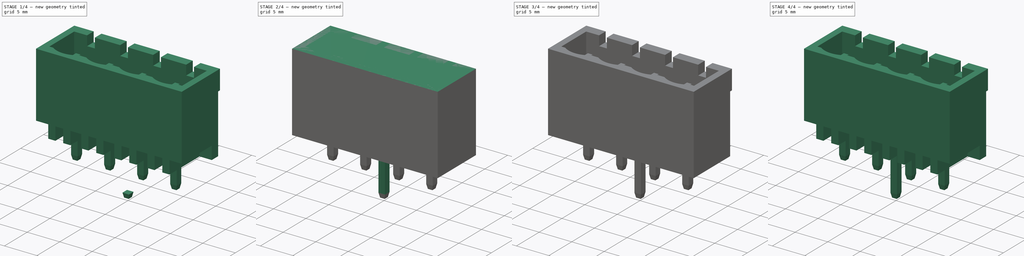
[diagram: build sequence overview — one tinted view per stage of 4, left to right]
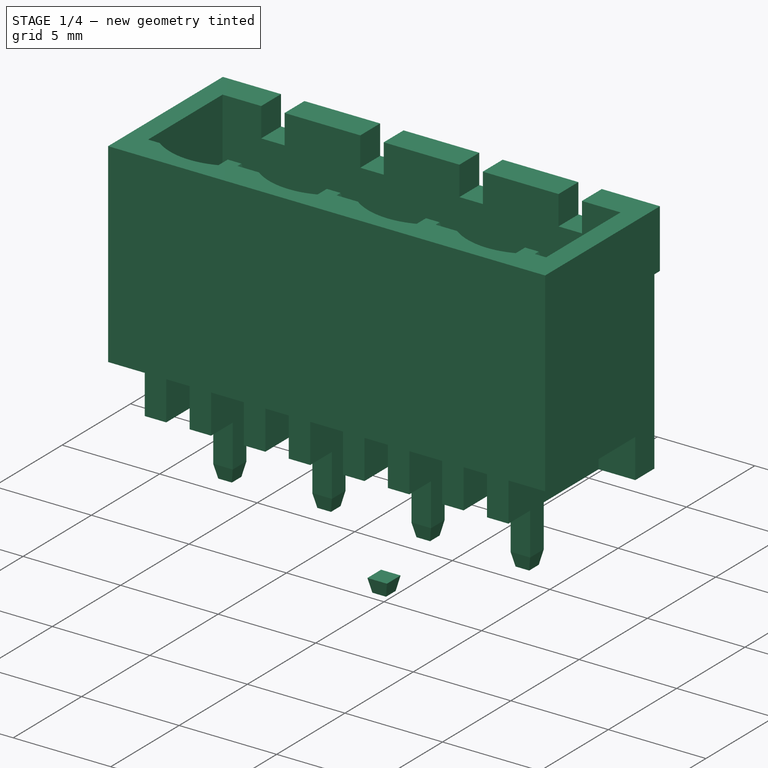
[diagram: stage 1 of 4 — iso view after this stage's code; geometry added in this stage tinted green]
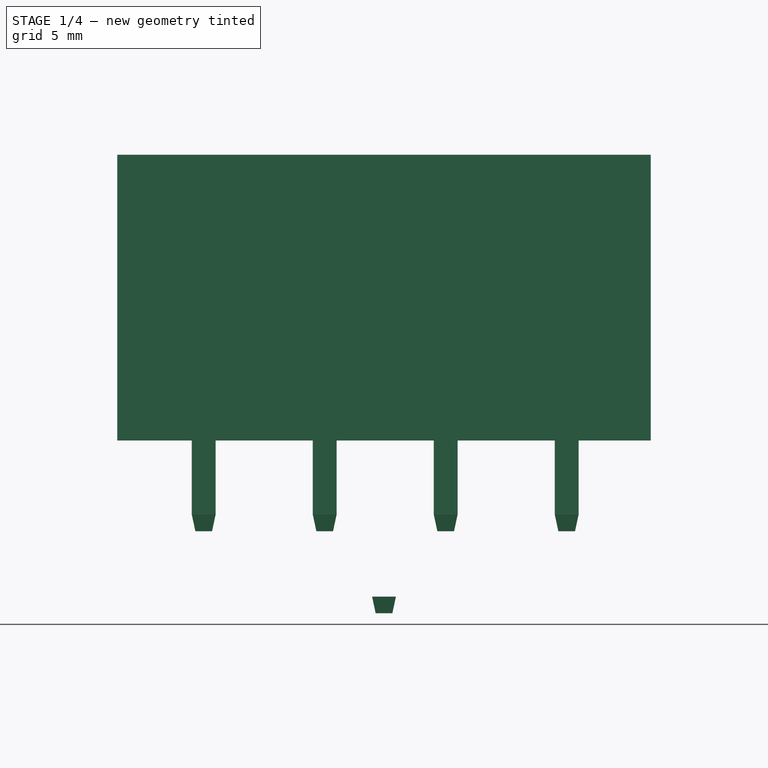
[diagram: stage 1 of 4 — front view after this stage's code; geometry added in this stage tinted green]
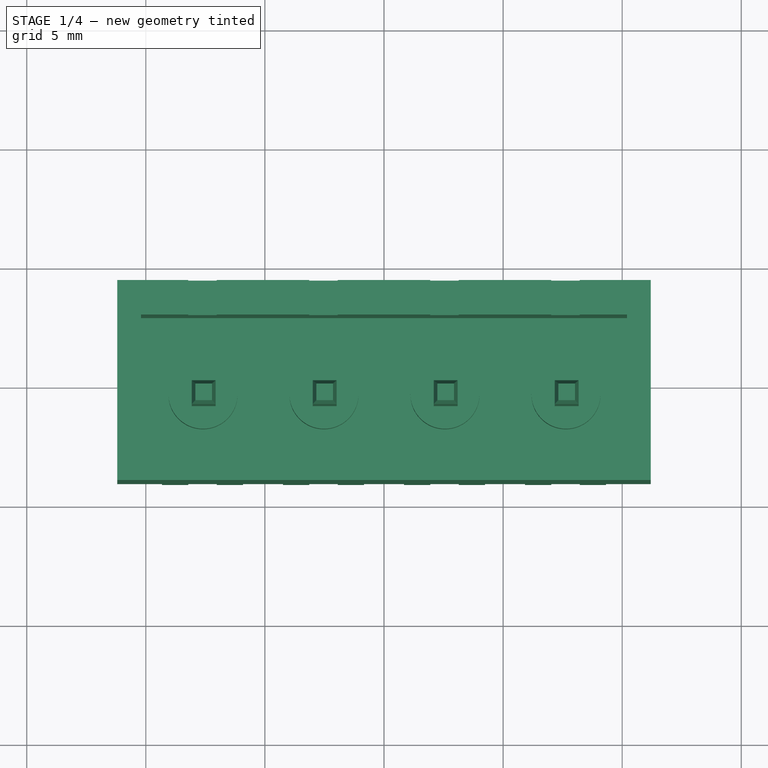
[diagram: stage 1 of 4 — top view after this stage's code; geometry added in this stage tinted green]
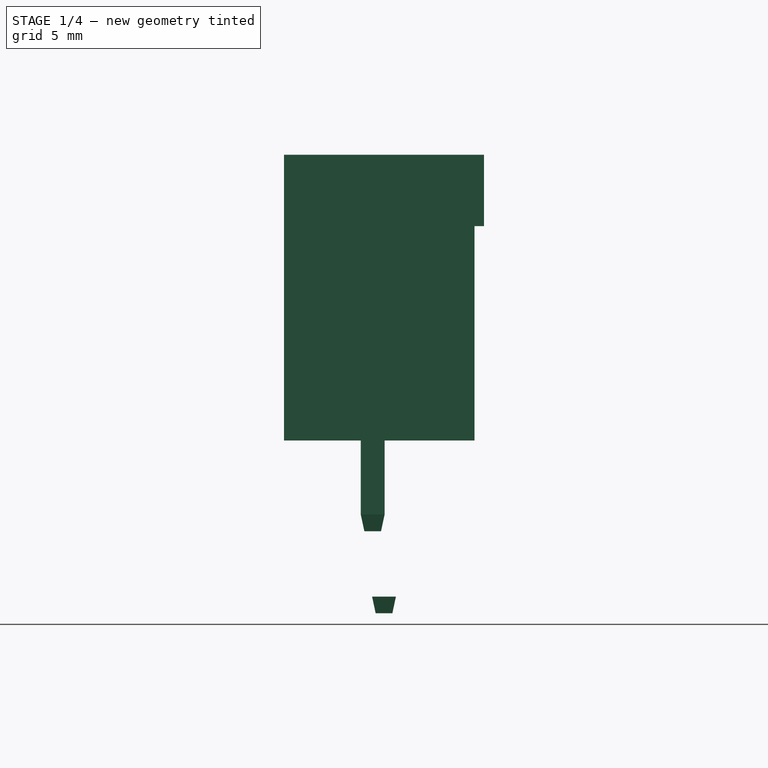
[diagram: stage 1 of 4 — right view after this stage's code; geometry added in this stage tinted green]
FCSTD DOCUMENT  (FreeCAD 0.14R3702 (Git))
Label: terminal-block-male-straight-4-ways
License: CC-BY 3.0
LicenseURL: http://creativecommons.org/licenses/by/3.0/
objects: Sketcher::SketchObject×9, Part::Feature×6, PartDesign::Pocket×4, PartDesign::Pad×3, App::DocumentObjectGroup×2, PartDesign::LinearPattern×1, PartDesign::Mirrored×1, Part::Loft×1, Part::Mirroring×1, Part::MultiFuse×1, Part::Compound×1
note: 35 computed .brp shape members not serialized (recipe doc carries the construction recipe); baked Part::Feature solids carry a one-line shape summary decoded from their .brp

FEATURE [Sketcher::SketchObject] Sketch010  label="pin-end-bottom-base-sketch"
  sketch-geometry (4):
    g0: LineSegment StartX=-0.5 StartY=0.5 StartZ=0 EndX=0.5 EndY=0.5 EndZ=0
    g1: LineSegment StartX=0.5 StartY=0.5 StartZ=0 EndX=0.5 EndY=-0.5 EndZ=0
    g2: LineSegment StartX=0.5 StartY=-0.5 StartZ=0 EndX=-0.5 EndY=-0.5 EndZ=0
    g3: LineSegment StartX=-0.5 StartY=-0.5 StartZ=0 EndX=-0.5 EndY=0.5 EndZ=0
  constraints (11):
    c: Coincident(g0,g1)
    c: Coincident(g1,g2)
    c: Coincident(g2,g3)
    c: Coincident(g3,g0)
    c: Horizontal(g0)
    c: Horizontal(g2)
    c: Vertical(g1)
    c: Vertical(g3)
    c: Symmetric(g0,g1,g-1)
    c: Equal(g0,g3)
    c: DistanceX(g0) = 1
FEATURE [Sketcher::SketchObject] Sketch011  label="pin-end-top-base-sketch"
  Placement = pos=(0,0,0.7) rot=(0,0,1;0rad)
  sketch-geometry (4):
    g0: LineSegment StartX=-0.35 StartY=0.35 StartZ=0 EndX=0.35 EndY=0.35 EndZ=0
    g1: LineSegment StartX=0.35 StartY=0.35 StartZ=0 EndX=0.35 EndY=-0.35 EndZ=0
    g2: LineSegment StartX=0.35 StartY=-0.35 StartZ=0 EndX=-0.35 EndY=-0.35 EndZ=0
    g3: LineSegment StartX=-0.35 StartY=-0.35 StartZ=0 EndX=-0.35 EndY=0.35 EndZ=0
  constraints (11):
    c: Coincident(g0,g1)
    c: Coincident(g1,g2)
    c: Coincident(g2,g3)
    c: Coincident(g3,g0)
    c: Horizontal(g0)
    c: Horizontal(g2)
    c: Vertical(g1)
    c: Vertical(g3)
    c: Symmetric(g0,g1,g-1)
    c: Equal(g0,g3)
    c: DistanceX(g0) = 0.7
FEATURE [Part::Loft] Loft  label="pin-end"
  Closed = false
  Placement = pos=(0,0,6.554) rot=(0,0,1;0rad)
  Ruled = false
  Sections = -> [Sketch010,Sketch011]
  Solid = true
FEATURE [Part::Mirroring] Part__Mirroring  label="pin-end (Mirror #1)"
  Base = (0,0,0)
  Normal = (0,0,1)
  Source = -> Loft
FEATURE [App::DocumentObjectGroup] Group002  label="pin-src"
  Group = -> [Loft,Pad003,Part__Mirroring,Fusion]
FEATURE [Part::Feature] Fusion001  label="pin001"
  Placement = pos=(-7.57,-0.475,3.446) rot=(0,0,1;0rad)
  shape: bbox 1 x 1 x 14.51 mm, 14 faces (baked)
FEATURE [Part::Feature] Fusion002  label="pin002"
  Placement = pos=(-2.49,-0.475,3.446) rot=(0,0,1;0rad)
  shape: bbox 1 x 1 x 14.51 mm, 14 faces (baked)
FEATURE [Part::Feature] Fusion003  label="pin003"
  Placement = pos=(2.59,-0.475,3.446) rot=(0,0,1;0rad)
  shape: bbox 1 x 1 x 14.51 mm, 14 faces (baked)
FEATURE [Part::Feature] Fusion004  label="pin004"
  Placement = pos=(7.67,-0.475,3.446) rot=(0,0,1;0rad)
  shape: bbox 1 x 1 x 14.51 mm, 14 faces (baked)
FEATURE [Part::Compound] Compound  label="terminal-block-male-straight-4-ways"
  Links = -> [Mirrored001,Fusion001,Fusion002,Fusion003,Fusion004]
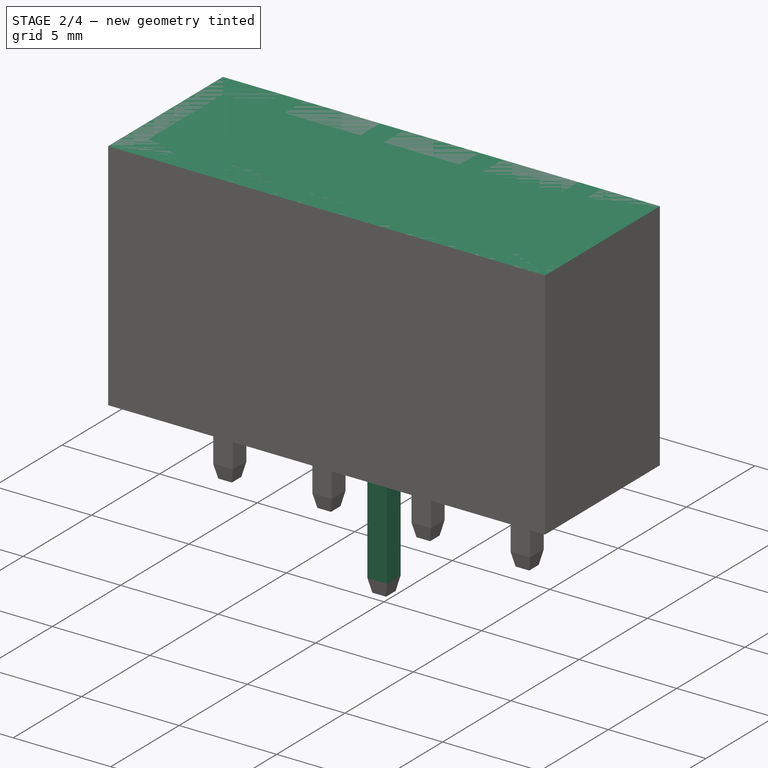
[diagram: stage 2 of 4 — iso view after this stage's code; geometry added in this stage tinted green]
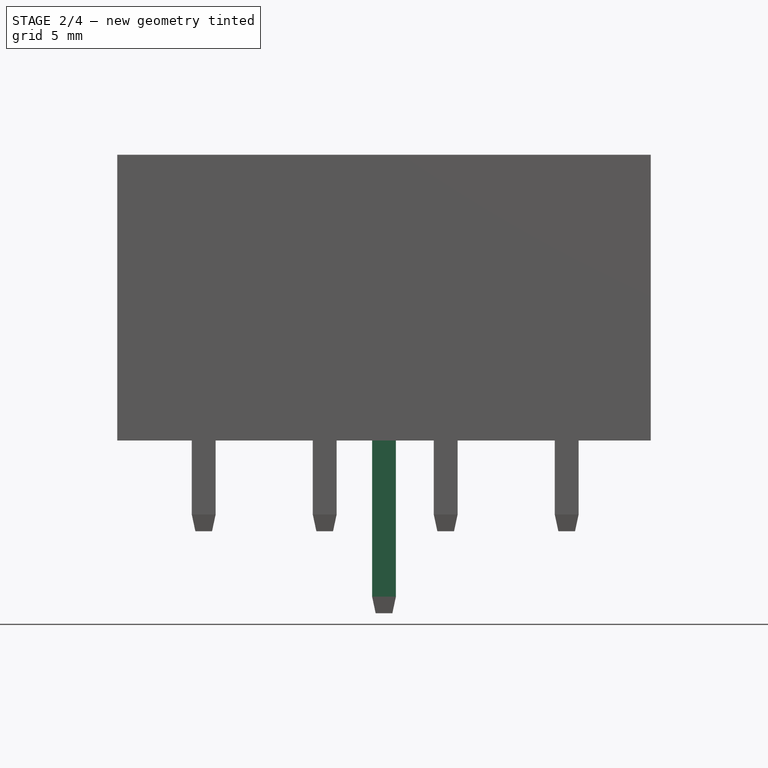
[diagram: stage 2 of 4 — front view after this stage's code; geometry added in this stage tinted green]
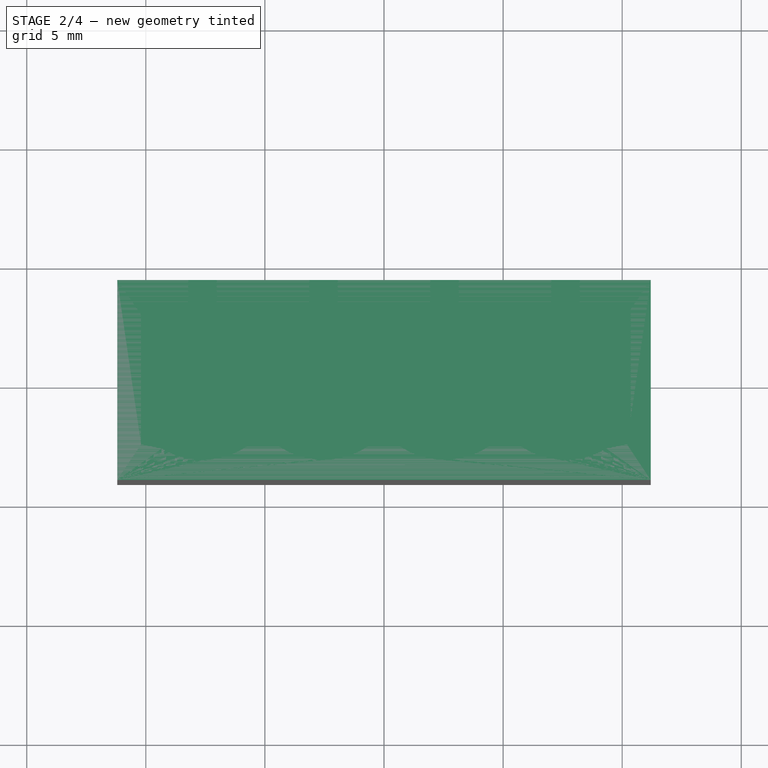
[diagram: stage 2 of 4 — top view after this stage's code; geometry added in this stage tinted green]
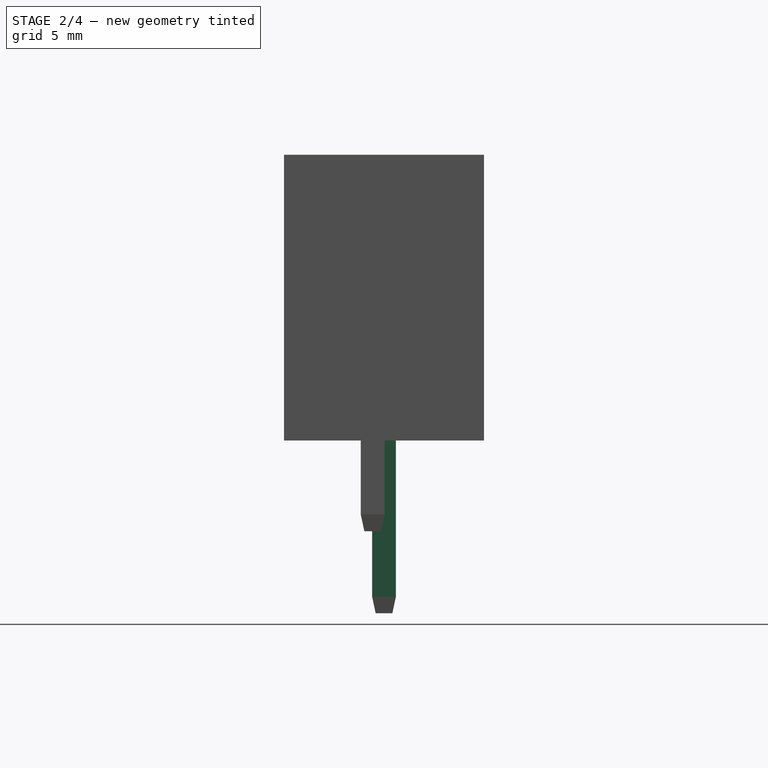
[diagram: stage 2 of 4 — right view after this stage's code; geometry added in this stage tinted green]
FEATURE [Part::Feature] Part__Feature  label="RAMPS1_136"
  Placement = pos=(0.05,-4.3,12) rot=(0,0,1;0rad)
  shape: bbox 22.32 x 12.5 x 12 mm, 181 faces (baked)
FEATURE [Sketcher::SketchObject] Sketch  label="main-body-sketch"
  sketch-geometry (4):
    g0: LineSegment StartX=-11.2 StartY=4.2 StartZ=0 EndX=11.2 EndY=4.2 EndZ=0
    g1: LineSegment StartX=11.2 StartY=4.2 StartZ=0 EndX=11.2 EndY=-4.2 EndZ=0
    g2: LineSegment StartX=11.2 StartY=-4.2 StartZ=0 EndX=-11.2 EndY=-4.2 EndZ=0
    g3: LineSegment StartX=-11.2 StartY=-4.2 StartZ=0 EndX=-11.2 EndY=4.2 EndZ=0
  constraints (11):
    c: Coincident(g0,g1)
    c: Coincident(g1,g2)
    c: Coincident(g2,g3)
    c: Coincident(g3,g0)
    c: Horizontal(g0)
    c: Horizontal(g2)
    c: Vertical(g1)
    c: Vertical(g3)
    c: Symmetric(g0,g1,g-1)
    c: DistanceX(g0) = 22.4
    c: DistanceY(g1) = -8.4
FEATURE [PartDesign::Pad] Pad  label="main-body"
  Length = 12
  Length2 = 100
  Sketch = -> Sketch
  Type = 0
FEATURE [App::DocumentObjectGroup] Group  label="body-src"
  Group = -> [Pad,Pocket,Pocket001,Pocket002,Pad001,LinearPattern,Pocket003,Mirrored]
FEATURE [Part::Feature] Mirrored001  label="terminal-body"
  shape: bbox 22.4 x 8.4 x 12 mm, 78 faces (baked)
FEATURE [Sketcher::SketchObject] Sketch009  label="pin-base-sketch"
  sketch-geometry (4):
    g0: LineSegment StartX=-0.5 StartY=0.5 StartZ=0 EndX=0.5 EndY=0.5 EndZ=0
    g1: LineSegment StartX=0.5 StartY=0.5 StartZ=0 EndX=0.5 EndY=-0.5 EndZ=0
    g2: LineSegment StartX=0.5 StartY=-0.5 StartZ=0 EndX=-0.5 EndY=-0.5 EndZ=0
    g3: LineSegment StartX=-0.5 StartY=-0.5 StartZ=0 EndX=-0.5 EndY=0.5 EndZ=0
  constraints (11):
    c: Coincident(g0,g1)
    c: Coincident(g1,g2)
    c: Coincident(g2,g3)
    c: Coincident(g3,g0)
    c: Horizontal(g0)
    c: Horizontal(g2)
    c: Vertical(g1)
    c: Vertical(g3)
    c: Symmetric(g0,g1,g-1)
    c: Equal(g0,g3)
    c: DistanceX(g0) = 1
FEATURE [PartDesign::Pad] Pad003  label="pin-base"
  Length = 13.108
  Length2 = 100
  Midplane = true
  Sketch = -> Sketch009
  Type = 0
FEATURE [Part::MultiFuse] Fusion  label="pin"
  Shapes = -> [Pad003,Loft,Part__Mirroring]
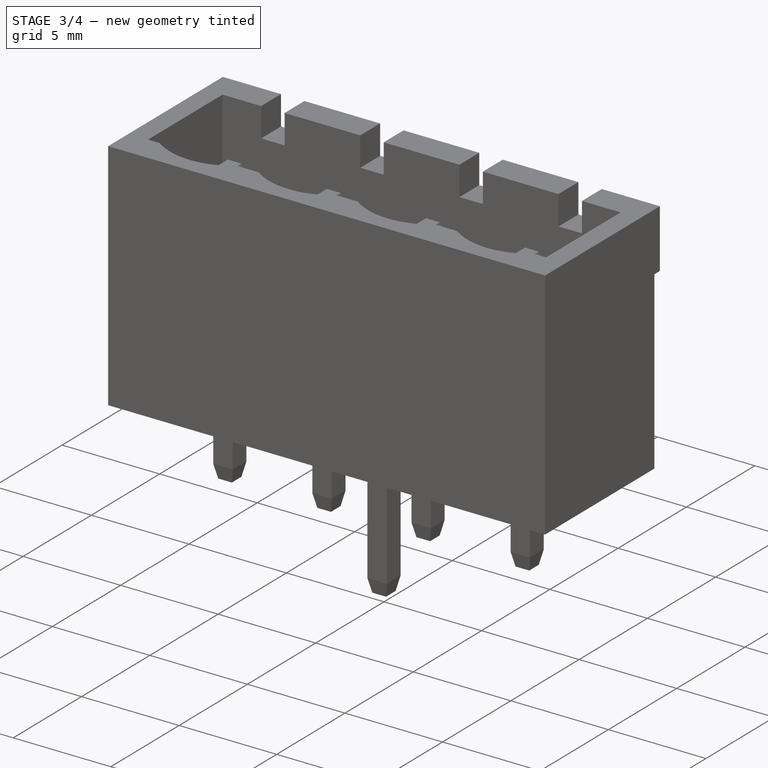
[diagram: stage 3 of 4 — iso view after this stage's code; geometry added in this stage tinted green]
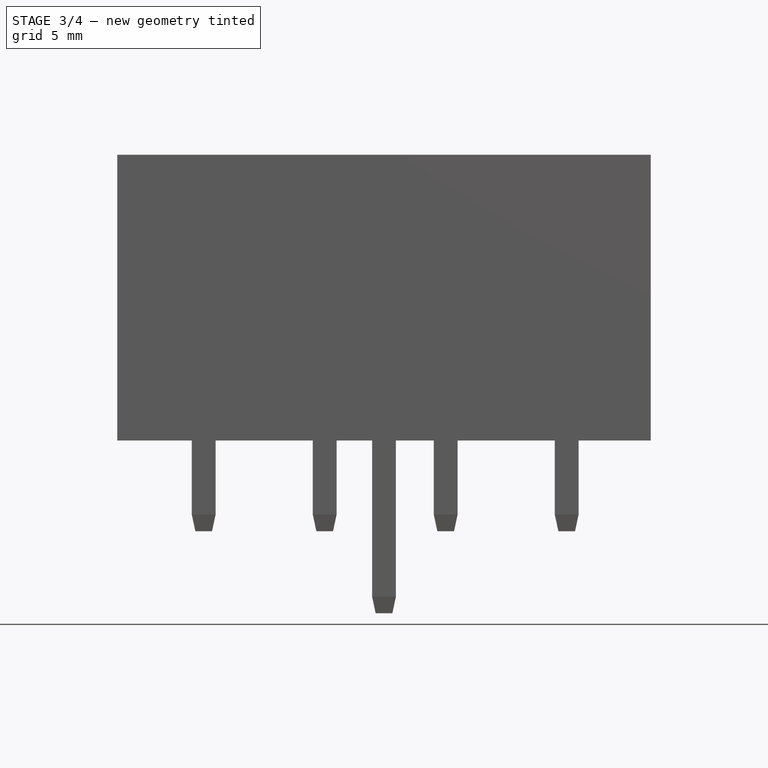
[diagram: stage 3 of 4 — front view after this stage's code; geometry added in this stage tinted green]
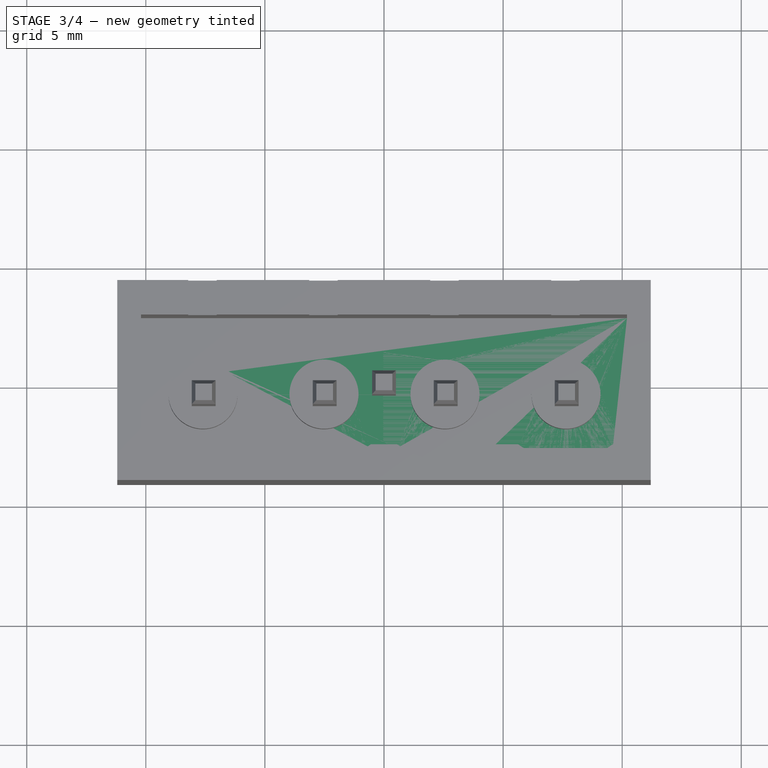
[diagram: stage 3 of 4 — top view after this stage's code; geometry added in this stage tinted green]
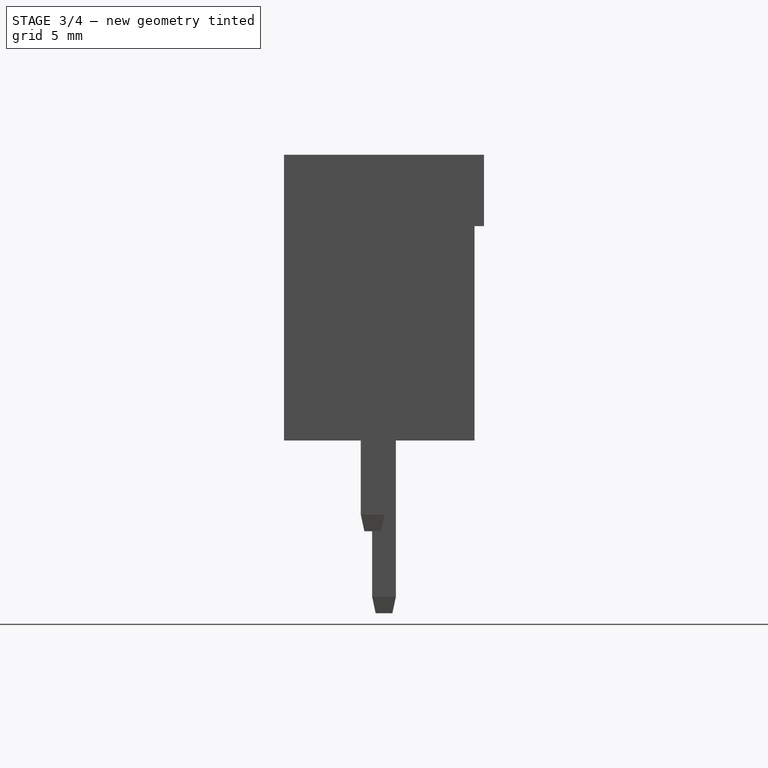
[diagram: stage 3 of 4 — right view after this stage's code; geometry added in this stage tinted green]
FEATURE [Sketcher::SketchObject] Sketch001  label="cutout-1-sketch"
  ExternalGeometry = -> [Pad]
  Placement = pos=(0,0,12) rot=(0,0,1;0rad)
  Support = -> Pad [Face6]
  sketch-geometry (19):
    g0: LineSegment StartX=-10.2 StartY=2.75 StartZ=0 EndX=10.2 EndY=2.75 EndZ=0
    g1: LineSegment StartX=10.2 StartY=2.75 StartZ=0 EndX=10.2 EndY=-2.7 EndZ=0
    g2: LineSegment StartX=-10.2 StartY=-2.7 StartZ=0 EndX=-10.2 EndY=2.75 EndZ=0
    g3: LineSegment [constr] StartX=-2.54 StartY=0 StartZ=0 EndX=2.54 EndY=0 EndZ=0
    g4: Circle [constr] CenterX=-2.54 CenterY=0 CenterZ=0 NormalX=0 NormalY=0 NormalZ=1 Radius=0.5
    g5: Circle [constr] CenterX=2.54 CenterY=0 CenterZ=0 NormalX=0 NormalY=0 NormalZ=1 Radius=0.5
    g6: LineSegment [constr] StartX=-7.62 StartY=0 StartZ=0 EndX=-2.54 EndY=0 EndZ=0
    g7: LineSegment [constr] StartX=2.54 StartY=0 StartZ=0 EndX=7.62 EndY=0 EndZ=0
    g8: Circle [constr] CenterX=-7.62 CenterY=0 CenterZ=0 NormalX=0 NormalY=0 NormalZ=1 Radius=0.5
    g9: Circle [constr] CenterX=7.62 CenterY=0 CenterZ=0 NormalX=0 NormalY=0 NormalZ=1 Radius=0.5
    g10: ArcOfCircle CenterX=-7.62 CenterY=0 CenterZ=0 NormalX=0 NormalY=0 NormalZ=1 Radius=3.35 StartAngle=4.07891 EndAngle=5.34587
    g11: LineSegment StartX=-10.2 StartY=-2.7 StartZ=0 EndX=-9.60305 EndY=-2.7 EndZ=0
    g12: LineSegment StartX=-5.63695 StartY=-2.7 StartZ=0 EndX=-4.52305 EndY=-2.7 EndZ=0
    g13: LineSegment StartX=-0.556947 StartY=-2.7 StartZ=0 EndX=0.556947 EndY=-2.7 EndZ=0
    g14: ArcOfCircle CenterX=-2.54 CenterY=0 CenterZ=0 NormalX=0 NormalY=0 NormalZ=1 Radius=3.35 StartAngle=4.07891 EndAngle=5.34587
    g15: ArcOfCircle CenterX=2.54 CenterY=0 CenterZ=0 NormalX=0 NormalY=0 NormalZ=1 Radius=3.35 StartAngle=4.07891 EndAngle=5.34587
    g16: LineSegment StartX=4.52305 StartY=-2.7 StartZ=0 EndX=5.63695 EndY=-2.7 EndZ=0
    g17: ArcOfCircle CenterX=7.62 CenterY=0 CenterZ=0 NormalX=0 NormalY=0 NormalZ=1 Radius=3.35 StartAngle=4.07891 EndAngle=5.34587
    g18: LineSegment StartX=9.60305 StartY=-2.7 StartZ=0 EndX=10.2 EndY=-2.7 EndZ=0
  constraints (53):
    c: Coincident(g0,g1)
    c: Coincident(g2,g0)
    c: Horizontal(g0)
    c: Vertical(g1)
    c: Vertical(g2)
    c: Symmetric(g0,g0,g-2)
    c: Symmetric(g3,g3,g-2)
    c: PointOnObject(g3,g-1)
    c: Coincident(g4,g3)
    c: Coincident(g5,g3)
    c: DistanceX(g3) = 5.08
    c: Equal(g4,g5)
    c: Radius(g4) = 0.5
    c: Horizontal(g6)
    c: Coincident(g6,g3)
    c: Horizontal(g7)
    c: Coincident(g7,g3)
    c: Equal(g6,g7)
    c: Equal(g7,g3)
    c: Coincident(g8,g6)
    c: Coincident(g9,g7)
    c: Equal(g8,g9)
    c: Equal(g9,g4)
    c: DistanceX(g0,g-3) = -1
    c: DistanceY(g0,g-3) = 1.45
    c: DistanceY(g-3,g2) = 1.5
    c: Symmetric(g2,g1,g-2)
    c: Coincident(g10,g6)
    c: Radius(g10) = 3.35
    c: Horizontal(g11)
    c: Coincident(g11,g2)
    c: Coincident(g11,g10)
    c: Horizontal(g12)
    c: PointOnObject(g12,g11)
    c: Coincident(g10,g12)
    c: Symmetric(g13,g13,g-2)
    c: PointOnObject(g13,g11)
    c: Equal(g14,g10)
    c: Coincident(g14,g3)
    c: Coincident(g14,g12)
    c: Coincident(g14,g13)
    c: Coincident(g15,g3)
    c: Equal(g14,g15)
    c: Coincident(g15,g13)
    c: Symmetric(g15,g12,g-2)
    c: Horizontal(g16)
    c: Symmetric(g16,g12,g-2)
    c: Symmetric(g16,g10,g-2)
    c: Coincident(g17,g7)
    c: Coincident(g17,g16)
    c: Horizontal(g18)
    c: Coincident(g18,g1)
    c: Coincident(g18,g17)
FEATURE [PartDesign::Pocket] Pocket  label="cutout-1"
  Length = 8.8
  Sketch = -> Sketch001
  Type = 0
FEATURE [Sketcher::SketchObject] Sketch002  label="cutout-2-sketch"
  ExternalGeometry = -> [Pocket]
  Placement = pos=(11.2,0,0) rot=(0.57735,0.57735,0.57735;2.0944rad)
  Support = -> Pocket [Face3]
  sketch-geometry (6):
    g0: LineSegment StartX=4.2 StartY=9 StartZ=0 EndX=3.8 EndY=9 EndZ=0
    g1: LineSegment StartX=3.8 StartY=9 StartZ=0 EndX=3.8 EndY=0 EndZ=0
    g2: LineSegment StartX=4.2 StartY=9 StartZ=0 EndX=4.4 EndY=9 EndZ=0
    g3: LineSegment StartX=4.4 StartY=9 StartZ=0 EndX=4.4 EndY=-0.2 EndZ=0
    g4: LineSegment StartX=4.4 StartY=-0.2 StartZ=0 EndX=3.8 EndY=-0.2 EndZ=0
    g5: LineSegment StartX=3.8 StartY=0 StartZ=0 EndX=3.8 EndY=-0.2 EndZ=0
  constraints (18):
    c: Coincident(g0,g1)
    c: Horizontal(g0)
    c: Vertical(g1)
    c: PointOnObject(g0,g-3)
    c: DistanceX(g0) = -0.4
    c: DistanceY(g0,g-3) = 3
    c: Coincident(g2,g3)
    c: Coincident(g3,g4)
    c: Horizontal(g2)
    c: Horizontal(g4)
    c: Vertical(g3)
    c: PointOnObject(g1,g-1)
    c: Coincident(g2,g0)
    c: DistanceX(g2) = 0.2
    c: Vertical(g5)
    c: Coincident(g5,g1)
    c: Coincident(g5,g4)
    c: DistanceY(g-3,g3) = -0.2
FEATURE [PartDesign::Pocket] Pocket001  label="cutout-2"
  Length = 5
  Sketch = -> Sketch002
  Type = 1
FEATURE [Sketcher::SketchObject] Sketch003  label="cutout-3-sketch"
  ExternalGeometry = -> [Pocket001]
  Placement = pos=(0,4.2,0) rot=(0,0.707107,0.707107;3.14159rad)
  Support = -> Pocket001 [Face1]
  sketch-geometry (18):
    g0: LineSegment StartX=-1.94 StartY=12 StartZ=0 EndX=-1.94 EndY=10.5 EndZ=0
    g1: LineSegment StartX=-1.94 StartY=10.5 StartZ=0 EndX=-3.14 EndY=10.5 EndZ=0
    g2: LineSegment StartX=-3.14 StartY=10.5 StartZ=0 EndX=-3.14 EndY=12 EndZ=0
    g3: LineSegment StartX=-3.14 StartY=12 StartZ=0 EndX=-1.94 EndY=12 EndZ=0
    g4: LineSegment [constr] StartX=-2.54 StartY=12 StartZ=0 EndX=-2.54 EndY=10.5 EndZ=0
    g5: LineSegment StartX=1.94 StartY=12 StartZ=0 EndX=3.14 EndY=12 EndZ=0
    g6: LineSegment StartX=3.14 StartY=12 StartZ=0 EndX=3.14 EndY=10.5 EndZ=0
    g7: LineSegment StartX=3.14 StartY=10.5 StartZ=0 EndX=1.94 EndY=10.5 EndZ=0
    g8: LineSegment StartX=1.94 StartY=10.5 StartZ=0 EndX=1.94 EndY=12 EndZ=0
    g9: LineSegment [constr] StartX=2.54 StartY=12 StartZ=0 EndX=2.54 EndY=10.5 EndZ=0
    g10: LineSegment StartX=-8.22 StartY=12 StartZ=0 EndX=-7.02 EndY=12 EndZ=0
    g11: LineSegment StartX=-7.02 StartY=12 StartZ=0 EndX=-7.02 EndY=10.5 EndZ=0
    g12: LineSegment StartX=-7.02 StartY=10.5 StartZ=0 EndX=-8.22 EndY=10.5 EndZ=0
    g13: LineSegment StartX=-8.22 StartY=10.5 StartZ=0 EndX=-8.22 EndY=12 EndZ=0
    g14: LineSegment StartX=7.02 StartY=12 StartZ=0 EndX=8.22 EndY=12 EndZ=0
    g15: LineSegment StartX=8.22 StartY=12 StartZ=0 EndX=8.22 EndY=10.5 EndZ=0
    g16: LineSegment StartX=8.22 StartY=10.5 StartZ=0 EndX=7.02 EndY=10.5 EndZ=0
    g17: LineSegment StartX=7.02 StartY=10.5 StartZ=0 EndX=7.02 EndY=12 EndZ=0
  constraints (52):
    c: Coincident(g0,g1)
    c: Coincident(g1,g2)
    c: Horizontal(g1)
    c: Vertical(g0)
    c: Vertical(g2)
    c: PointOnObject(g2,g-3)
    c: Coincident(g3,g2)
    c: Coincident(g3,g0)
    c: Vertical(g4)
    c: PointOnObject(g4,g1)
    c: PointOnObject(g4,g-3)
    c: Symmetric(g2,g0,g4)
    c: Coincident(g5,g6)
    c: Coincident(g6,g7)
    c: Coincident(g7,g8)
    c: Coincident(g8,g5)
    c: Horizontal(g5)
    c: Horizontal(g7)
    c: Vertical(g6)
    c: Vertical(g8)
    c: Symmetric(g5,g0,g-2)
    c: Symmetric(g5,g2,g-2)
    c: Vertical(g9)
    c: Symmetric(g9,g4,g-2)
    c: PointOnObject(g9,g7)
    c: Symmetric(g7,g0,g-2)
    c: DistanceX(g4,g9) = 5.08
    c: DistanceX(g1) = -1.2
    c: DistanceY(g0) = -1.5
    c: Coincident(g10,g11)
    c: Coincident(g11,g12)
    c: Coincident(g12,g13)
    c: Coincident(g13,g10)
    c: Horizontal(g10)
    c: Horizontal(g12)
    c: Vertical(g11)
    c: Vertical(g13)
    c: Coincident(g14,g15)
    c: Coincident(g15,g16)
    c: Coincident(g16,g17)
    c: Coincident(g17,g14)
    c: Horizontal(g14)
    c: Horizontal(g16)
    c: Vertical(g15)
    c: Vertical(g17)
    c: PointOnObject(g10,g-3)
    c: DistanceX(g2,g10) = -5.08
    c: Equal(g12,g1)
    c: Equal(g11,g2)
    c: Symmetric(g14,g10,g-2)
    c: Symmetric(g14,g10,g-2)
    c: Symmetric(g16,g11,g-2)
FEATURE [PartDesign::Pocket] Pocket002  label="cutout-3"
  Length = 2
  Sketch = -> Sketch003
  Type = 0
FEATURE [Sketcher::SketchObject] Sketch004  label="pin-base-master-sketch"
  Placement = pos=(0,0,3.2) rot=(0,0,1;0rad)
  Support = -> Pocket002 [Face36]
  sketch-geometry (1):
    g0: Circle CenterX=-7.6 CenterY=-0.47 CenterZ=0 NormalX=0 NormalY=0 NormalZ=1 Radius=1.45
  constraints (3):
    c: DistanceX(g-1,g0) = -7.6
    c: DistanceY(g-1,g0) = -0.47
    c: Radius(g0) = 1.45
FEATURE [PartDesign::Pad] Pad001  label="pint-base-master"
  Length = 1.7
  Length2 = 100
  Sketch = -> Sketch004
  Type = 0
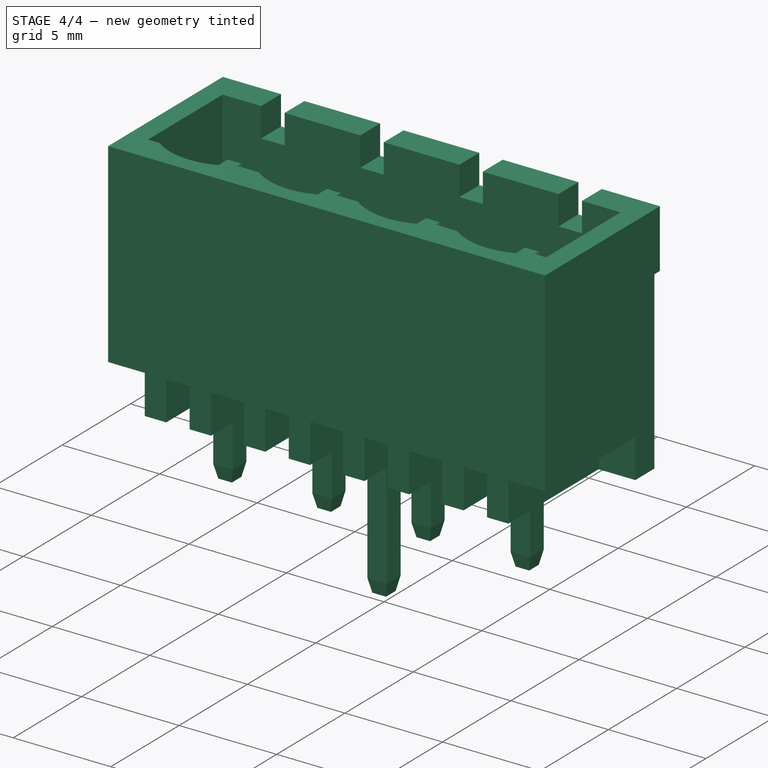
[diagram: stage 4 of 4 — iso view after this stage's code; geometry added in this stage tinted green]
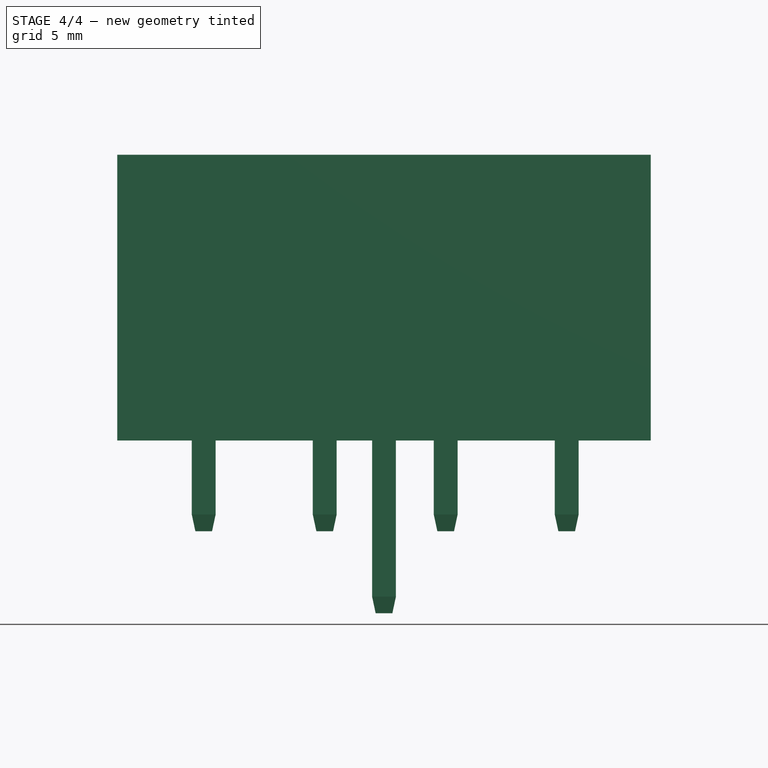
[diagram: stage 4 of 4 — front view after this stage's code; geometry added in this stage tinted green]
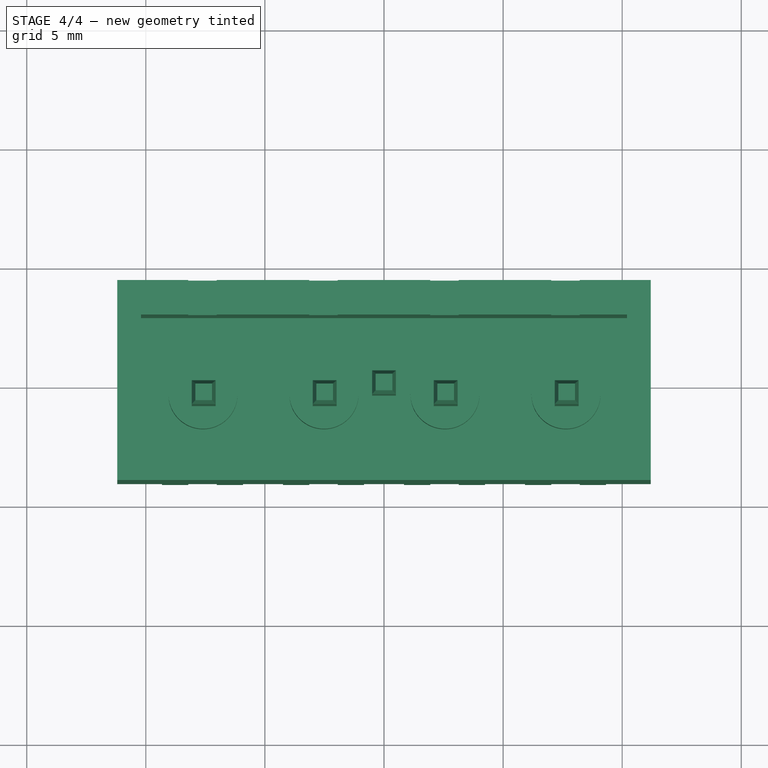
[diagram: stage 4 of 4 — top view after this stage's code; geometry added in this stage tinted green]
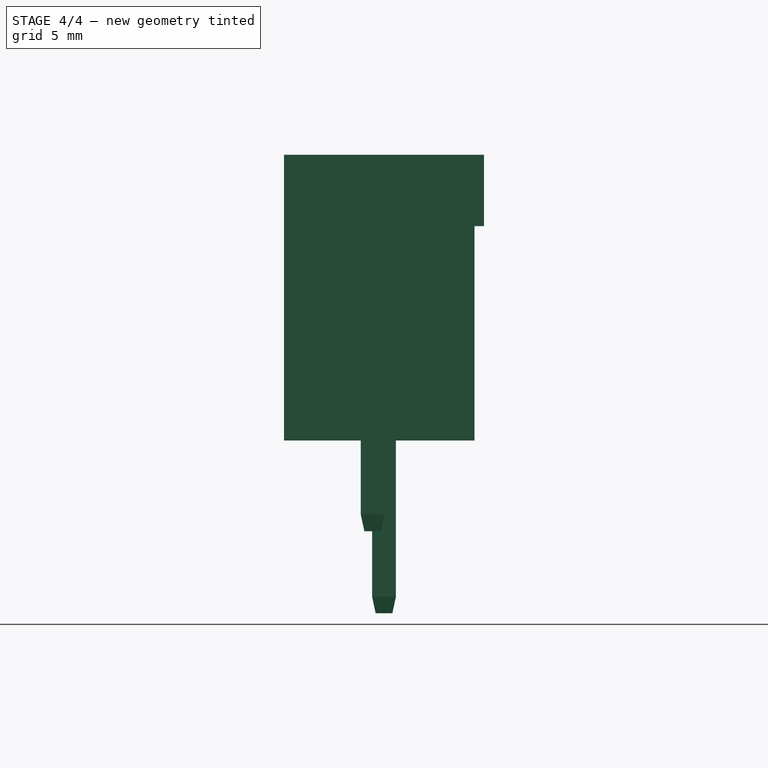
[diagram: stage 4 of 4 — right view after this stage's code; geometry added in this stage tinted green]
FEATURE [PartDesign::LinearPattern] LinearPattern  label="pin-bases"
  Direction = -> Sketch004 [H_Axis]
  Length = 15.24
  Occurrences = 4
  Originals = -> [Pad001]
FEATURE [Sketcher::SketchObject] Sketch005  label="cutout-4-sketch"
  Placement = pos=(0,-4.2,0) rot=(1,0,0;1.5708rad)
  Support = -> LinearPattern [Face23]
  sketch-geometry (22):
    g0: LineSegment StartX=-3.14 StartY=0 StartZ=0 EndX=-1.94 EndY=0 EndZ=0
    g1: LineSegment StartX=-1.94 StartY=0 StartZ=0 EndX=-1.94 EndY=2 EndZ=0
    g2: LineSegment StartX=-1.94 StartY=2 StartZ=0 EndX=-3.14 EndY=2 EndZ=0
    g3: LineSegment StartX=-3.14 StartY=2 StartZ=0 EndX=-3.14 EndY=0 EndZ=0
    g4: LineSegment [constr] StartX=-2.54 StartY=0 StartZ=0 EndX=-2.54 EndY=2 EndZ=0
    g5: LineSegment StartX=-8.22 StartY=2 StartZ=0 EndX=-7.02 EndY=2 EndZ=0
    g6: LineSegment StartX=-7.02 StartY=2 StartZ=0 EndX=-7.02 EndY=0 EndZ=0
    g7: LineSegment StartX=-7.02 StartY=0 StartZ=0 EndX=-8.22 EndY=0 EndZ=0
    g8: LineSegment StartX=-8.22 StartY=0 StartZ=0 EndX=-8.22 EndY=2 EndZ=0
    g9: LineSegment StartX=-5.92 StartY=0 StartZ=0 EndX=-4.24 EndY=0 EndZ=0
    g10: LineSegment StartX=-4.24 StartY=0 StartZ=0 EndX=-4.24 EndY=2 EndZ=0
    g11: LineSegment StartX=-4.24 StartY=2 StartZ=0 EndX=-5.92 EndY=2 EndZ=0
    g12: LineSegment StartX=-5.92 StartY=2 StartZ=0 EndX=-5.92 EndY=0 EndZ=0
    g13: LineSegment [constr] StartX=-5.08 StartY=2 StartZ=0 EndX=-5.08 EndY=0 EndZ=0
    g14: LineSegment StartX=-0.84 StartY=0 StartZ=0 EndX=0 EndY=0 EndZ=0
    g15: LineSegment StartX=0 StartY=0 StartZ=0 EndX=0 EndY=2 EndZ=0
    g16: LineSegment StartX=0 StartY=2 StartZ=0 EndX=-0.84 EndY=2 EndZ=0
    g17: LineSegment StartX=-0.84 StartY=2 StartZ=0 EndX=-0.84 EndY=0 EndZ=0
    g18: LineSegment StartX=-11.82 StartY=2 StartZ=0 EndX=-9.32 EndY=2 EndZ=0
    g19: LineSegment StartX=-9.32 StartY=2 StartZ=0 EndX=-9.32 EndY=0 EndZ=0
    g20: LineSegment StartX=-9.32 StartY=0 StartZ=0 EndX=-11.82 EndY=0 EndZ=0
    g21: LineSegment StartX=-11.82 StartY=0 StartZ=0 EndX=-11.82 EndY=2 EndZ=0
  constraints (65):
    c: Coincident(g0,g1)
    c: Coincident(g1,g2)
    c: Coincident(g2,g3)
    c: Coincident(g3,g0)
    c: Horizontal(g0)
    c: Horizontal(g2)
    c: Vertical(g1)
    c: Vertical(g3)
    c: PointOnObject(g0,g-1)
    c: DistanceY(g1) = 2
    c: PointOnObject(g4,g2)
    c: PointOnObject(g4,g0)
    c: Symmetric(g2,g1,g4)
    c: DistanceX(g-1,g4) = -2.54
    c: DistanceX(g0) = 1.2
    c: Coincident(g5,g6)
    c: Coincident(g6,g7)
    c: Coincident(g7,g8)
    c: Coincident(g8,g5)
    c: Horizontal(g5)
    c: Horizontal(g7)
    c: Vertical(g6)
    c: Vertical(g8)
    c: PointOnObject(g7,g-1)
    c: DistanceX(g0,g7) = -5.08
    c: Equal(g5,g2)
    c: Equal(g6,g3)
    c: Coincident(g9,g10)
    c: Coincident(g10,g11)
    c: Coincident(g11,g12)
    c: Coincident(g12,g9)
    c: Horizontal(g9)
    c: Horizontal(g11)
    c: Vertical(g10)
    c: Vertical(g12)
    c: PointOnObject(g11,g5)
    c: PointOnObject(g9,g-1)
    c: PointOnObject(g13,g11)
    c: PointOnObject(g13,g9)
    c: Symmetric(g11,g10,g13)
    c: Symmetric(g5,g2,g13)
    c: DistanceX(g11,g5) = -1.1
    c: Coincident(g14,g15)
    c: Coincident(g15,g16)
    c: Coincident(g16,g17)
    c: Coincident(g17,g14)
    c: Horizontal(g14)
    c: Horizontal(g16)
    c: Vertical(g15)
    c: Vertical(g17)
    c: Coincident(g14,g-1)
    c: Equal(g17,g1)
    c: DistanceX(g1,g16) = 1.1
    c: Coincident(g18,g19)
    c: Coincident(g19,g20)
    c: Coincident(g20,g21)
    c: Coincident(g21,g18)
    c: Horizontal(g18)
    c: Horizontal(g20)
    c: Vertical(g19)
    c: Vertical(g21)
    c: PointOnObject(g19,g-1)
    c: Equal(g19,g8)
    c: DistanceX(g5,g18) = -1.1
    c: DistanceX(g18) = 2.5
FEATURE [PartDesign::Pocket] Pocket003  label="cutout-4"
  Length = 6.6
  Sketch = -> Sketch005
  Type = 0
FEATURE [PartDesign::Mirrored] Mirrored
  MirrorPlane = -> Sketch005 [V_Axis]
  Originals = -> [Pocket003]
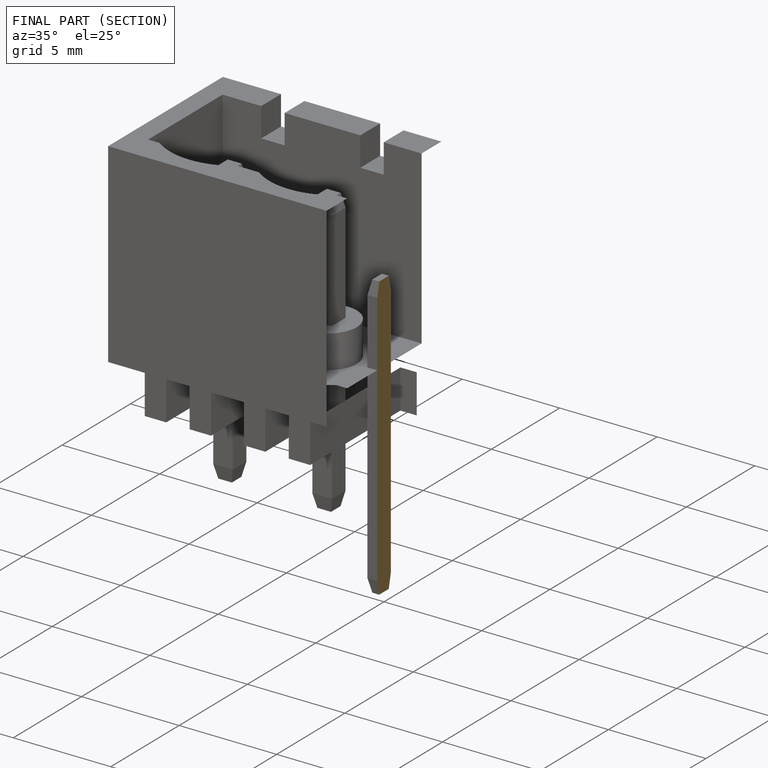
[diagram: finished part — half-section view (interior)]
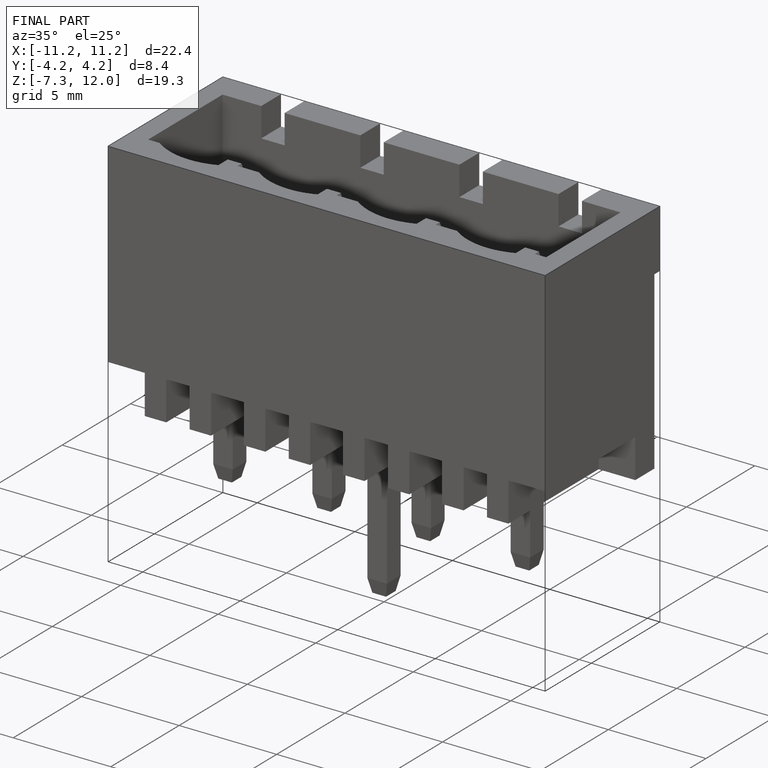
[diagram: finished part — iso view with bounding-box wireframe]
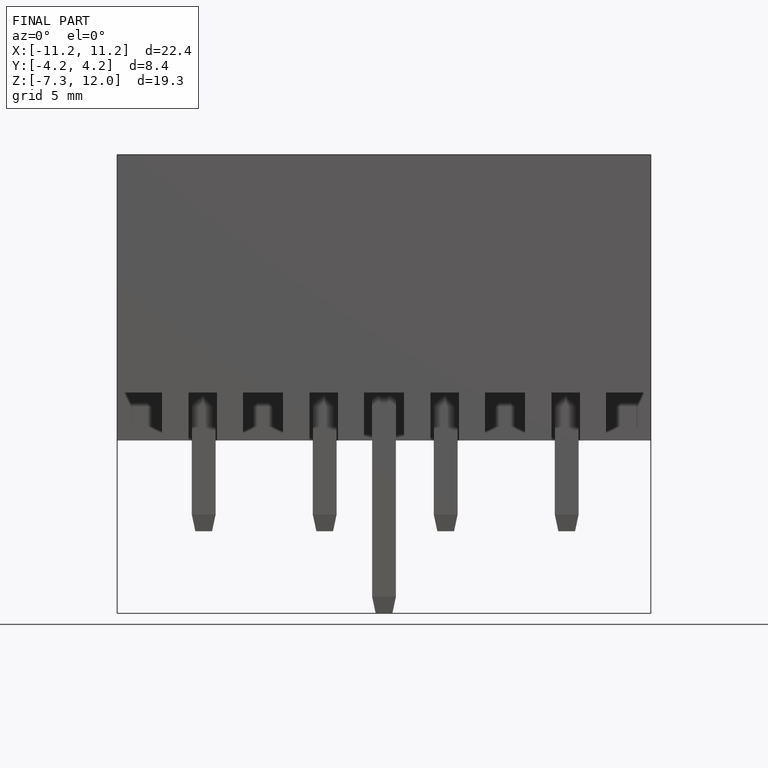
[diagram: finished part — front view with bounding-box wireframe]
